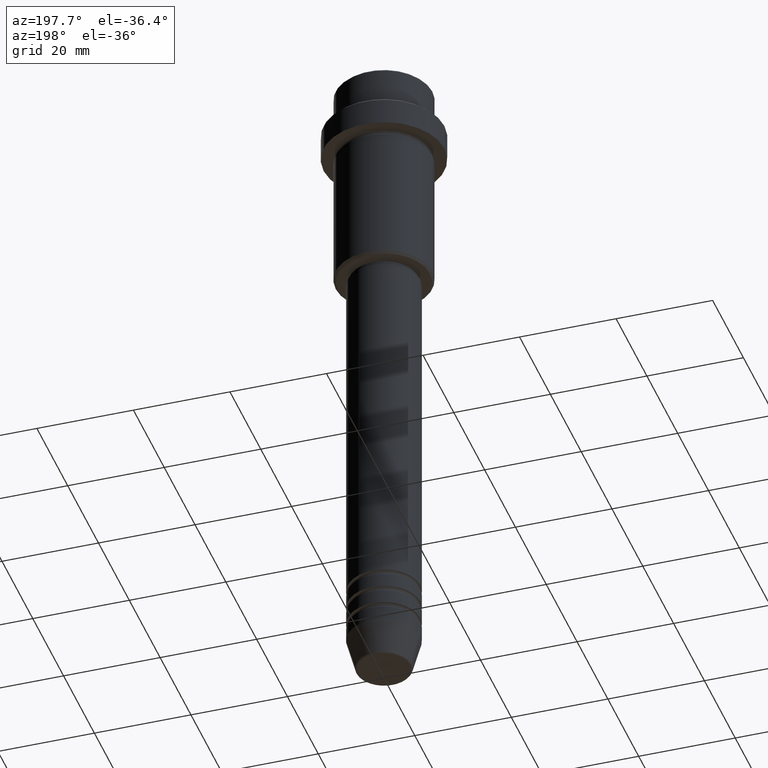
[diagram: clean part render]
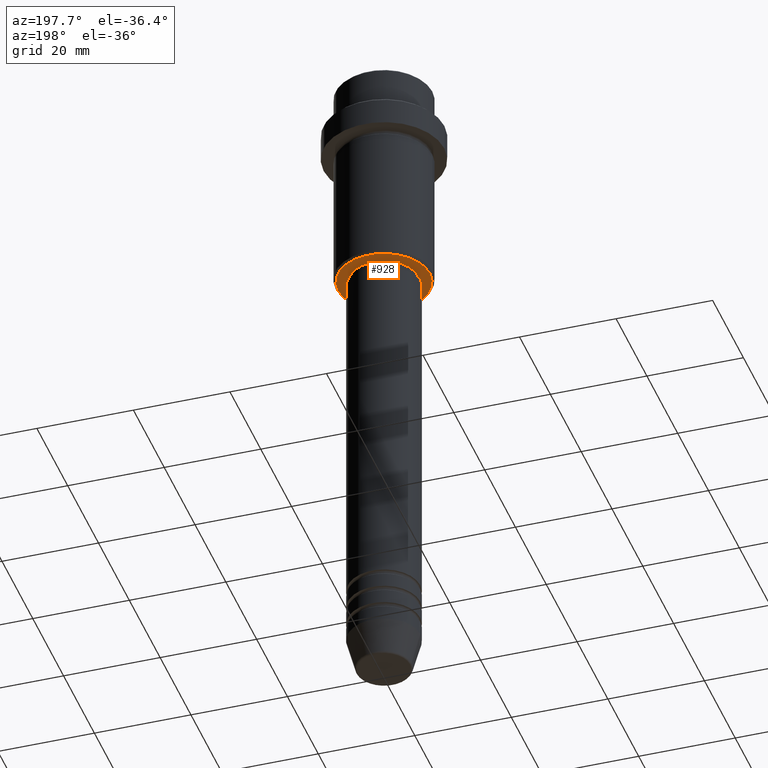
[diagram: same view with one face highlighted and labeled with its STEP entity id]
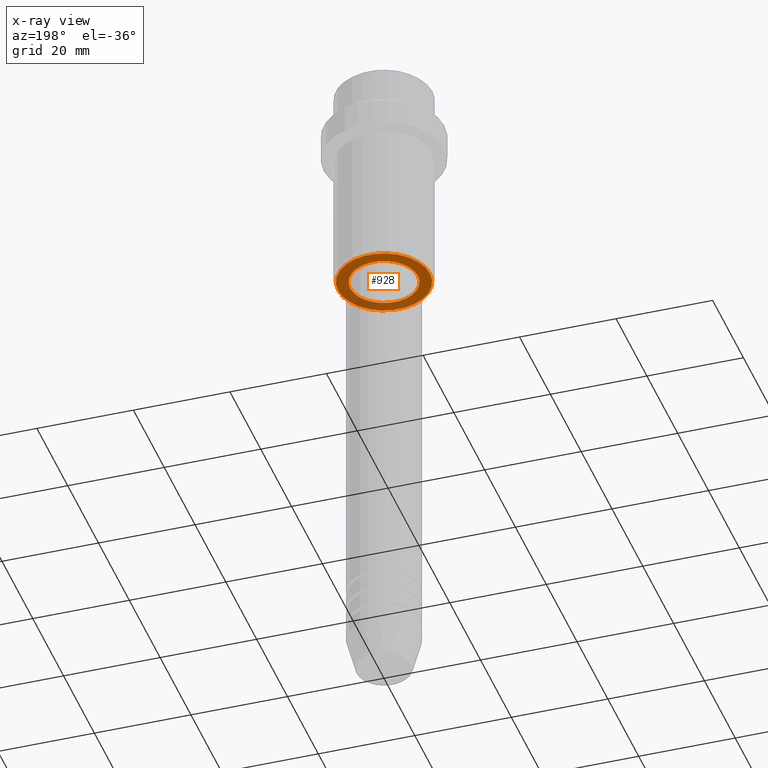
[diagram: x-ray of the same camera — body ghosted, the highlighted face saturated]
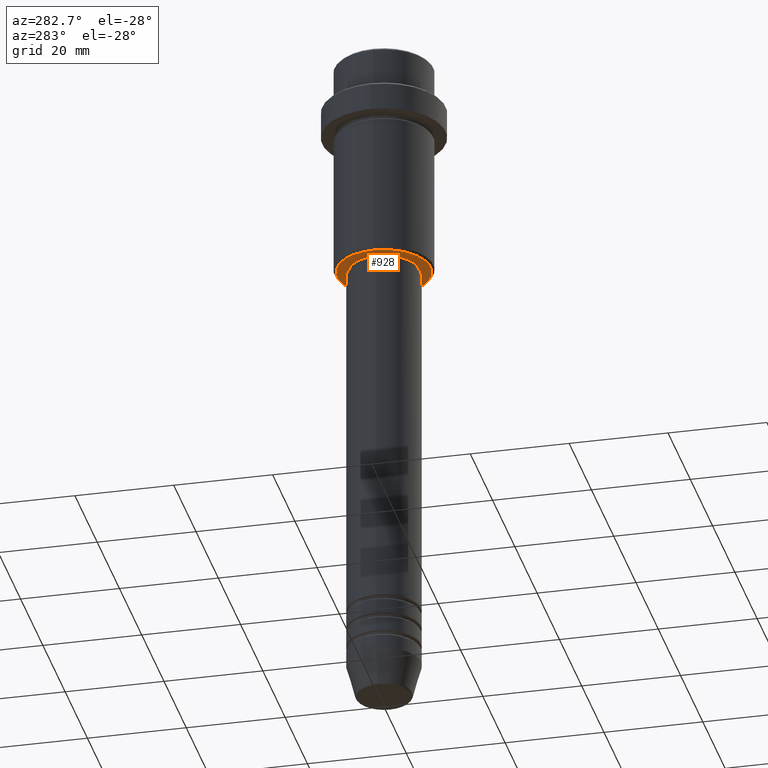
[diagram: same view with one face highlighted and labeled with its STEP entity id]
A machine part, auxiliary view. The second image highlights one B-rep face of the part: STEP entity #928.
The next image is the same camera in x-ray: the body ghosted, the highlighted face saturated — about 21% of this face is hidden behind the body in this view.
A second angle (auxiliary view) of the same face is appended — the face is thin or edge-on in the first view.
In plain terms, the highlighted planar face has unit normal (0, 0, -1).
Its self-contained STEP definition (entity closure, byte-faithful):
#4 = DIRECTION ( 'NONE',  ( 0.000000000000000000, 0.000000000000000000, -1.000000000000000000 ) ) ;
#65 = AXIS2_PLACEMENT_3D ( 'NONE', #336, #1012, #146 ) ;
#114 = CARTESIAN_POINT ( 'NONE',  ( -9.499999999999980460, 1.194030629168668089E-15, -45.00000000000001421 ) ) ;
#119 = EDGE_CURVE ( 'NONE', #315, #901, #1085, .T. ) ;
#132 = VERTEX_POINT ( 'NONE', #1018 ) ;
#137 = ORIENTED_EDGE ( 'NONE', *, *, #1079, .T. ) ;
#146 = DIRECTION ( 'NONE',  ( 1.000000000000000000, 0.000000000000000000, 0.000000000000000000 ) ) ;
#311 = AXIS2_PLACEMENT_3D ( 'NONE', #1033, #1048, #1133 ) ;
#315 = VERTEX_POINT ( 'NONE', #606 ) ;
#336 = CARTESIAN_POINT ( 'NONE',  ( 0.000000000000000000, 0.000000000000000000, -45.00000000000001421 ) ) ;
#358 = EDGE_CURVE ( 'NONE', #901, #315, #978, .T. ) ;
#471 = AXIS2_PLACEMENT_3D ( 'NONE', #1151, #497, #1034 ) ;
#497 = DIRECTION ( 'NONE',  ( 0.000000000000000000, 0.000000000000000000, -1.000000000000000000 ) ) ;
#537 = CARTESIAN_POINT ( 'NONE',  ( 0.000000000000000000, 10.00000000000000000, -45.00000000000001421 ) ) ;
#546 = AXIS2_PLACEMENT_3D ( 'NONE', #1238, #1317, #1338 ) ;
#557 = FACE_BOUND ( 'NONE', #1176, .T. ) ;
#606 = CARTESIAN_POINT ( 'NONE',  ( 9.499999999999980460, 0.000000000000000000, -45.00000000000001421 ) ) ;
#692 = CARTESIAN_POINT ( 'NONE',  ( -6.999999999999993783, 8.572527594031465301E-16, -45.00000000000001421 ) ) ;
#711 = AXIS2_PLACEMENT_3D ( 'NONE', #537, #4, #1208 ) ;
#770 = FACE_OUTER_BOUND ( 'NONE', #1053, .T. ) ;
#837 = ORIENTED_EDGE ( 'NONE', *, *, #119, .T. ) ;
#901 = VERTEX_POINT ( 'NONE', #114 ) ;
#928 = ADVANCED_FACE ( 'NONE', ( #770, #557 ), #986, .T. ) ;
#978 = CIRCLE ( 'NONE', #311, 9.499999999999980460 ) ;
#986 = PLANE ( 'NONE',  #711 ) ;
#1012 = DIRECTION ( 'NONE',  ( -0.000000000000000000, -0.000000000000000000, 1.000000000000000000 ) ) ;
#1018 = CARTESIAN_POINT ( 'NONE',  ( 6.999999999999993783, 0.000000000000000000, -45.00000000000001421 ) ) ;
#1030 = EDGE_CURVE ( 'NONE', #1402, #132, #1114, .T. ) ;
#1033 = CARTESIAN_POINT ( 'NONE',  ( 0.000000000000000000, 0.000000000000000000, -45.00000000000001421 ) ) ;
#1034 = DIRECTION ( 'NONE',  ( -1.000000000000000000, 0.000000000000000000, 0.000000000000000000 ) ) ;
#1048 = DIRECTION ( 'NONE',  ( 0.000000000000000000, 0.000000000000000000, -1.000000000000000000 ) ) ;
#1053 = EDGE_LOOP ( 'NONE', ( #837, #1260 ) ) ;
#1079 = EDGE_CURVE ( 'NONE', #132, #1402, #1090, .T. ) ;
#1085 = CIRCLE ( 'NONE', #471, 9.499999999999980460 ) ;
#1090 = CIRCLE ( 'NONE', #546, 6.999999999999993783 ) ;
#1114 = CIRCLE ( 'NONE', #65, 6.999999999999993783 ) ;
#1121 = ORIENTED_EDGE ( 'NONE', *, *, #1030, .T. ) ;
#1133 = DIRECTION ( 'NONE',  ( -1.000000000000000000, 0.000000000000000000, 0.000000000000000000 ) ) ;
#1151 = CARTESIAN_POINT ( 'NONE',  ( 0.000000000000000000, 0.000000000000000000, -45.00000000000001421 ) ) ;
#1176 = EDGE_LOOP ( 'NONE', ( #137, #1121 ) ) ;
#1208 = DIRECTION ( 'NONE',  ( -1.000000000000000000, 0.000000000000000000, -0.000000000000000000 ) ) ;
#1238 = CARTESIAN_POINT ( 'NONE',  ( 0.000000000000000000, 0.000000000000000000, -45.00000000000001421 ) ) ;
#1260 = ORIENTED_EDGE ( 'NONE', *, *, #358, .T. ) ;
#1317 = DIRECTION ( 'NONE',  ( -0.000000000000000000, -0.000000000000000000, 1.000000000000000000 ) ) ;
#1338 = DIRECTION ( 'NONE',  ( 1.000000000000000000, 0.000000000000000000, 0.000000000000000000 ) ) ;
#1402 = VERTEX_POINT ( 'NONE', #692 ) ;